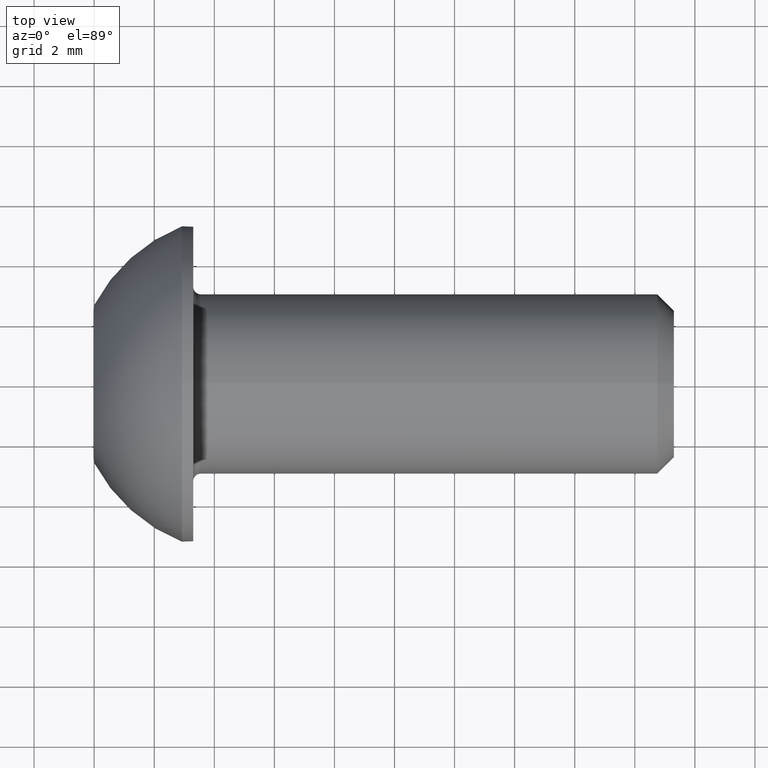
[diagram: clean part render]
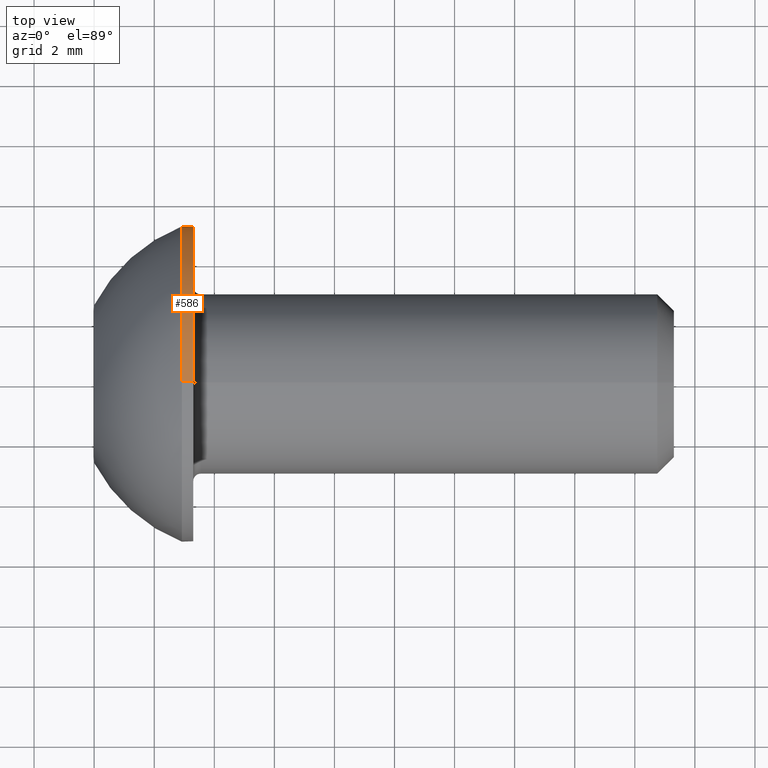
[diagram: same view with one face highlighted and labeled with its STEP entity id]
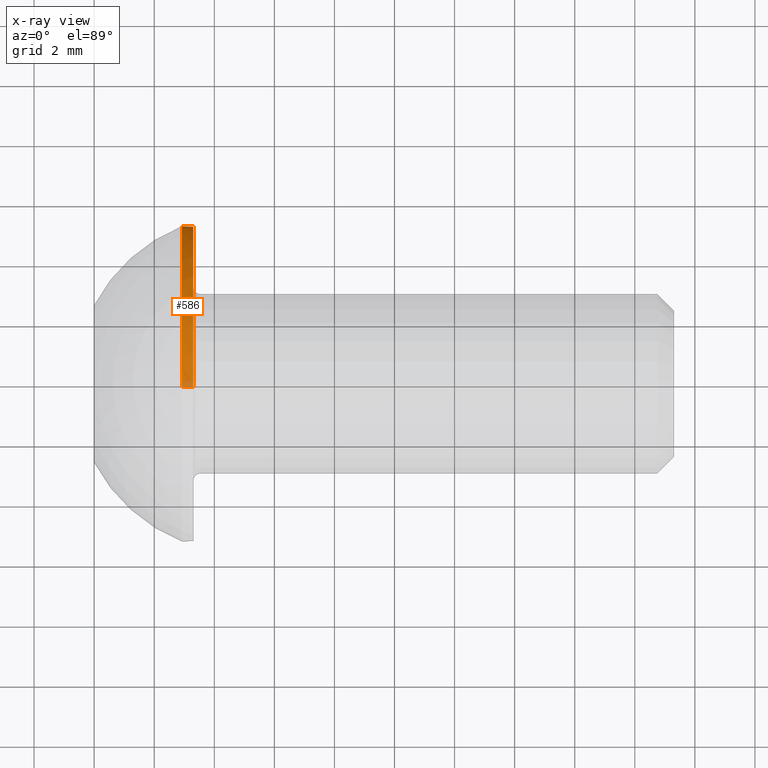
[diagram: x-ray of the same camera — body ghosted, the highlighted face saturated]
A machine part, top view. The second image highlights one B-rep face of the part: STEP entity #586.
The next image is the same camera in x-ray: the body ghosted, the highlighted face saturated — about 3% of this face is hidden behind the body in this view.
In plain terms, the highlighted cylindrical surface (partial cylindrical patch) has radius 5.25 mm, axis along (-1, -0, -0).
Its self-contained STEP definition (entity closure, byte-faithful):
#19 = DIRECTION ( 'NONE',  ( -1.000000000000000000, -0.000000000000000000, -0.000000000000000000 ) ) ;
#32 = AXIS2_PLACEMENT_3D ( 'NONE', #377, #19, #558 ) ;
#42 = CARTESIAN_POINT ( 'NONE',  ( 0.000000000000000000, 0.000000000000000000, 5.249999999999996447 ) ) ;
#53 = CYLINDRICAL_SURFACE ( 'NONE', #590, 5.249999999999996447 ) ;
#89 = VERTEX_POINT ( 'NONE', #598 ) ;
#112 = VECTOR ( 'NONE', #717, 1000.000000000000000 ) ;
#114 = AXIS2_PLACEMENT_3D ( 'NONE', #668, #734, #376 ) ;
#127 = CIRCLE ( 'NONE', #114, 5.249999999999995559 ) ;
#139 = VERTEX_POINT ( 'NONE', #428 ) ;
#187 = EDGE_CURVE ( 'NONE', #560, #572, #584, .T. ) ;
#196 = CARTESIAN_POINT ( 'NONE',  ( 0.000000000000000000, 6.429395695523600208E-16, -5.249999999999996447 ) ) ;
#219 = EDGE_CURVE ( 'NONE', #572, #139, #394, .T. ) ;
#233 = FACE_OUTER_BOUND ( 'NONE', #642, .T. ) ;
#238 = DIRECTION ( 'NONE',  ( 0.000000000000000000, 0.000000000000000000, 1.000000000000000000 ) ) ;
#242 = CARTESIAN_POINT ( 'NONE',  ( 0.000000000000000000, 0.000000000000000000, 0.000000000000000000 ) ) ;
#249 = LINE ( 'NONE', #196, #112 ) ;
#301 = VERTEX_POINT ( 'NONE', #439 ) ;
#305 = CIRCLE ( 'NONE', #468, 5.249999999999997335 ) ;
#364 = EDGE_CURVE ( 'NONE', #139, #301, #305, .T. ) ;
#376 = DIRECTION ( 'NONE',  ( 0.000000000000000000, 0.000000000000000000, 1.000000000000000000 ) ) ;
#377 = CARTESIAN_POINT ( 'NONE',  ( 2.919999999999999929, 0.000000000000000000, 0.000000000000000000 ) ) ;
#381 = ORIENTED_EDGE ( 'NONE', *, *, #364, .F. ) ;
#394 = CIRCLE ( 'NONE', #32, 5.249999999999997335 ) ;
#428 = CARTESIAN_POINT ( 'NONE',  ( 2.919999999999999929, 5.249999999999997335, 0.000000000000000000 ) ) ;
#435 = DIRECTION ( 'NONE',  ( -1.000000000000000000, -0.000000000000000000, -0.000000000000000000 ) ) ;
#439 = CARTESIAN_POINT ( 'NONE',  ( 2.919999999999999929, 6.429395695523601195E-16, -5.249999999999997335 ) ) ;
#468 = AXIS2_PLACEMENT_3D ( 'NONE', #682, #573, #570 ) ;
#525 = VECTOR ( 'NONE', #435, 1000.000000000000000 ) ;
#529 = CARTESIAN_POINT ( 'NONE',  ( 2.919999999999999929, 0.000000000000000000, 5.249999999999997335 ) ) ;
#558 = DIRECTION ( 'NONE',  ( 0.000000000000000000, 0.000000000000000000, 1.000000000000000000 ) ) ;
#560 = VERTEX_POINT ( 'NONE', #651 ) ;
#570 = DIRECTION ( 'NONE',  ( 0.000000000000000000, 0.000000000000000000, 1.000000000000000000 ) ) ;
#572 = VERTEX_POINT ( 'NONE', #529 ) ;
#573 = DIRECTION ( 'NONE',  ( -1.000000000000000000, -0.000000000000000000, -0.000000000000000000 ) ) ;
#584 = LINE ( 'NONE', #42, #525 ) ;
#586 = ADVANCED_FACE ( 'NONE', ( #233 ), #53, .T. ) ;
#590 = AXIS2_PLACEMENT_3D ( 'NONE', #242, #711, #238 ) ;
#598 = CARTESIAN_POINT ( 'NONE',  ( 3.299999999999999822, 6.429395695523600208E-16, -5.249999999999995559 ) ) ;
#606 = EDGE_CURVE ( 'NONE', #89, #301, #249, .T. ) ;
#625 = ORIENTED_EDGE ( 'NONE', *, *, #219, .F. ) ;
#642 = EDGE_LOOP ( 'NONE', ( #750, #763, #381, #625, #727 ) ) ;
#651 = CARTESIAN_POINT ( 'NONE',  ( 3.299999999999999822, 0.000000000000000000, 5.249999999999995559 ) ) ;
#668 = CARTESIAN_POINT ( 'NONE',  ( 3.299999999999999822, 0.000000000000000000, 0.000000000000000000 ) ) ;
#680 = EDGE_CURVE ( 'NONE', #560, #89, #127, .T. ) ;
#682 = CARTESIAN_POINT ( 'NONE',  ( 2.919999999999999929, 0.000000000000000000, 0.000000000000000000 ) ) ;
#711 = DIRECTION ( 'NONE',  ( -1.000000000000000000, -0.000000000000000000, -0.000000000000000000 ) ) ;
#717 = DIRECTION ( 'NONE',  ( -1.000000000000000000, -0.000000000000000000, -0.000000000000000000 ) ) ;
#727 = ORIENTED_EDGE ( 'NONE', *, *, #187, .F. ) ;
#734 = DIRECTION ( 'NONE',  ( -1.000000000000000000, -0.000000000000000000, -0.000000000000000000 ) ) ;
#750 = ORIENTED_EDGE ( 'NONE', *, *, #680, .T. ) ;
#763 = ORIENTED_EDGE ( 'NONE', *, *, #606, .T. ) ;